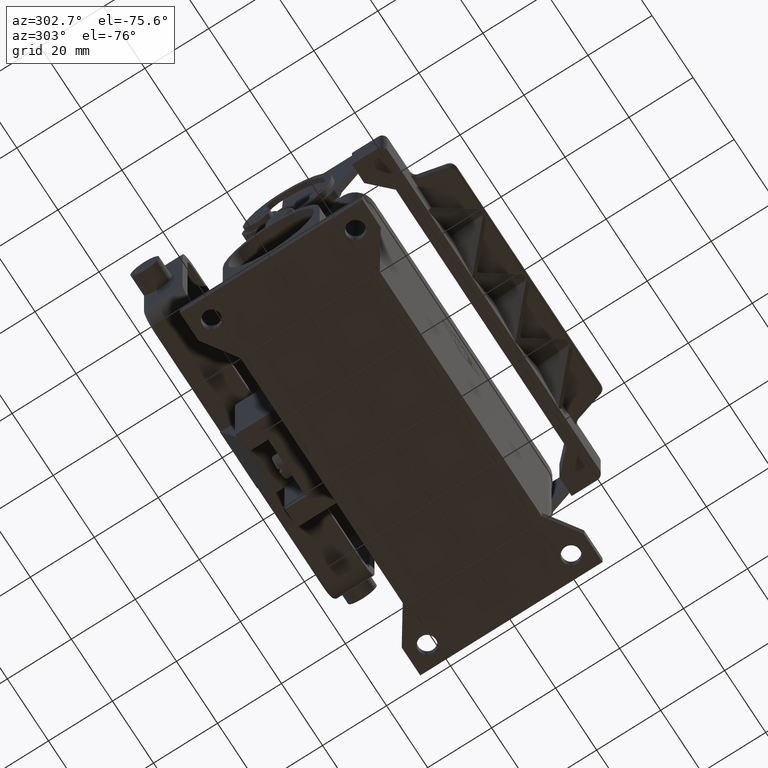
[diagram: clean part render]
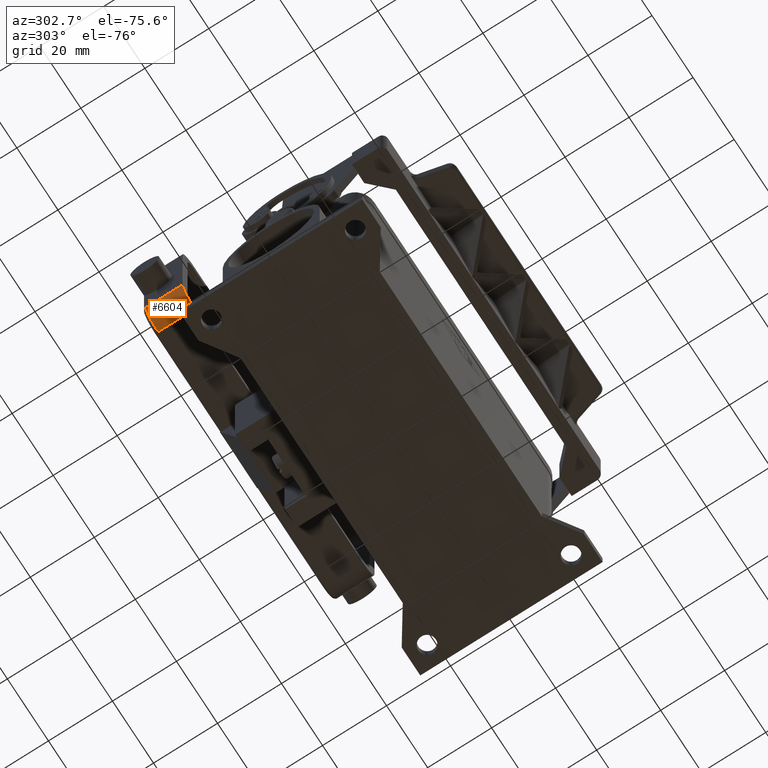
[diagram: same view with one face highlighted and labeled with its STEP entity id]
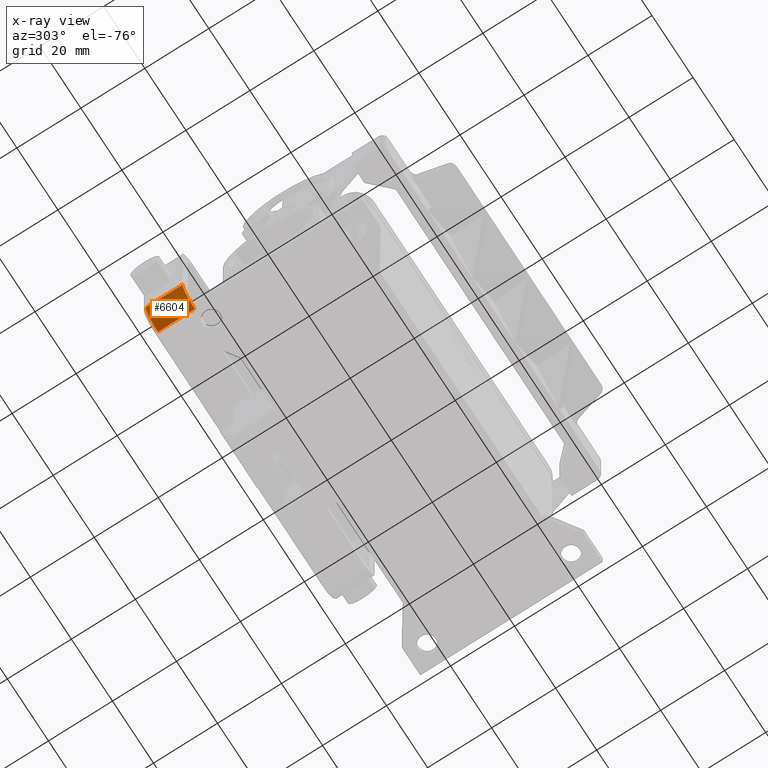
[diagram: x-ray of the same camera — body ghosted, the highlighted face saturated]
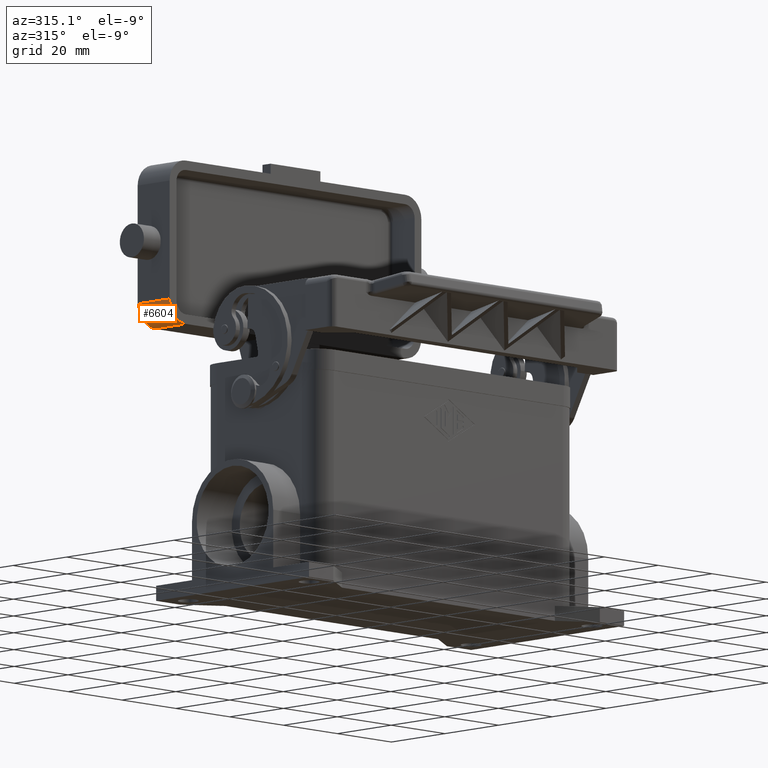
[diagram: same view with one face highlighted and labeled with its STEP entity id]
A machine part, auxiliary view. The second image highlights one B-rep face of the part: STEP entity #6604.
The next image is the same camera in x-ray: the body ghosted, the highlighted face saturated — about 9% of this face is hidden behind the body in this view.
A second angle (auxiliary view) of the same face is appended — the face is thin or edge-on in the first view.
In plain terms, the highlighted cylindrical surface (edge-blend (fillet) strip) has radius 6 mm, axis along (0, 1, 0).
Its self-contained STEP definition (entity closure, byte-faithful):
#4064=CARTESIAN_POINT('',(-46.750000000000007,46.750000000000000,48.499999999999986));
#4065=VERTEX_POINT('',#4064);
#6088=CARTESIAN_POINT('',(-46.750000000000007,35.250000000000000,48.499999999999986));
#6089=VERTEX_POINT('',#6088);
#6090=CARTESIAN_POINT('',(-46.750000000000007,35.250000000000000,48.499999999999986));
#6091=DIRECTION('',(0.0,1.0,0.0));
#6092=VECTOR('',#6091,11.500000000000000);
#6093=LINE('',#6090,#6092);
#6094=EDGE_CURVE('',#6089,#4065,#6093,.T.);
#6477=CARTESIAN_POINT('',(-40.750000000000014,46.750000000000000,42.499999999999986));
#6478=VERTEX_POINT('',#6477);
#6486=CARTESIAN_POINT('',(-40.750000000000014,46.750000000000000,48.499999999999986));
#6487=DIRECTION('',(0.0,1.000000000000000,0.0));
#6488=DIRECTION('',(-0.707106781186548,0.0,-0.707106781186548));
#6489=AXIS2_PLACEMENT_3D('',#6486,#6487,#6488);
#6490=CIRCLE('',#6489,5.999999999999996);
#6491=EDGE_CURVE('',#6478,#4065,#6490,.T.);
#6580=CARTESIAN_POINT('',(-40.750000000000014,35.250000000000000,48.499999999999986));
#6581=DIRECTION('',(0.0,1.0,0.0));
#6582=DIRECTION('',(0.0,0.0,1.0));
#6583=AXIS2_PLACEMENT_3D('',#6580,#6581,#6582);
#6584=CYLINDRICAL_SURFACE('',#6583,5.999999999999996);
#6585=ORIENTED_EDGE('',*,*,#6491,.F.);
#6586=CARTESIAN_POINT('',(-40.750000000000014,35.250000000000000,42.499999999999986));
#6587=VERTEX_POINT('',#6586);
#6588=CARTESIAN_POINT('',(-40.750000000000014,35.250000000000000,42.499999999999986));
#6589=DIRECTION('',(0.0,1.0,0.0));
#6590=VECTOR('',#6589,11.500000000000000);
#6591=LINE('',#6588,#6590);
#6592=EDGE_CURVE('',#6587,#6478,#6591,.T.);
#6593=ORIENTED_EDGE('',*,*,#6592,.F.);
#6594=CARTESIAN_POINT('',(-40.750000000000014,35.250000000000000,48.499999999999986));
#6595=DIRECTION('',(0.0,-1.0,0.0));
#6596=DIRECTION('',(0.0,0.0,1.0));
#6597=AXIS2_PLACEMENT_3D('',#6594,#6595,#6596);
#6598=CIRCLE('',#6597,5.999999999999996);
#6599=EDGE_CURVE('',#6089,#6587,#6598,.T.);
#6600=ORIENTED_EDGE('',*,*,#6599,.F.);
#6601=ORIENTED_EDGE('',*,*,#6094,.T.);
#6602=EDGE_LOOP('',(#6585,#6593,#6600,#6601));
#6603=FACE_OUTER_BOUND('',#6602,.T.);
#6604=ADVANCED_FACE('',(#6603),#6584,.T.);